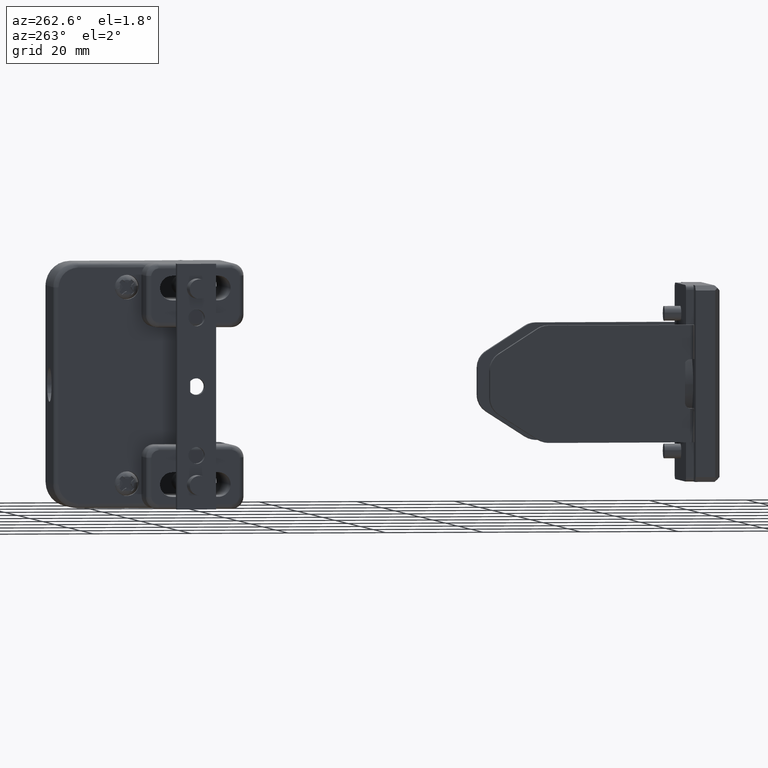
[diagram: clean part render]
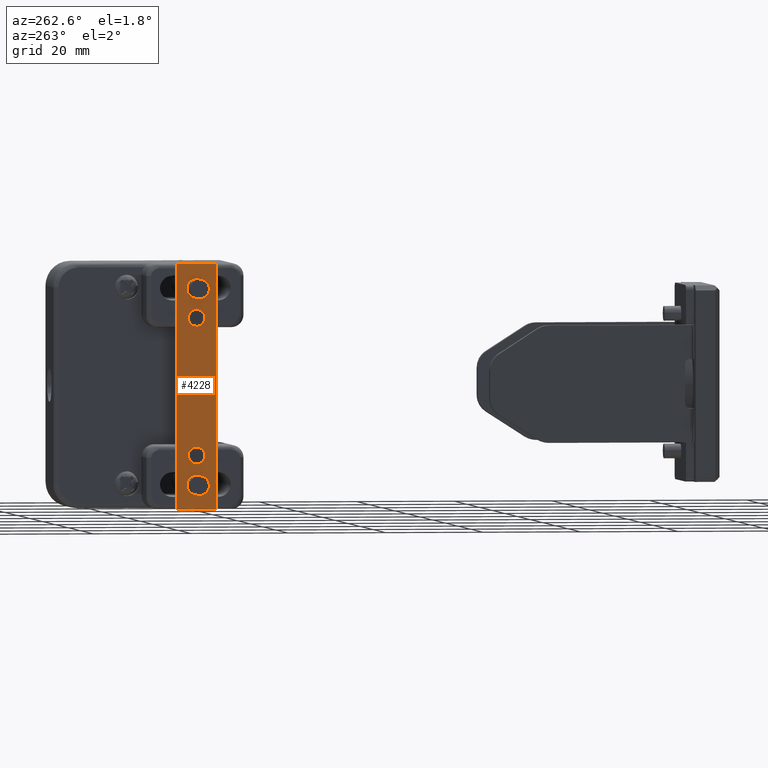
[diagram: same view with one face highlighted and labeled with its STEP entity id]
A machine part, auxiliary view. The second image highlights one B-rep face of the part: STEP entity #4228.
In plain terms, the highlighted face is a freeform B-spline surface patch.
Its self-contained STEP definition (entity closure, byte-faithful):
#3158=CARTESIAN_POINT('',(106.344875807416500,17.0,14.133380463721281));
#3159=VERTEX_POINT('',#3158);
#3165=CARTESIAN_POINT('',(108.039635274685390,17.0,15.699999999999999));
#3166=VERTEX_POINT('',#3165);
#3167=CARTESIAN_POINT('',(108.039635274685390,17.0,15.699999999999999));
#3168=CARTESIAN_POINT('',(106.468171440696810,17.000000000000011,15.699999999999994));
#3169=CARTESIAN_POINT('',(106.344875807416490,17.000000000000004,14.133380463721275));
#3177=(BOUNDED_CURVE()B_SPLINE_CURVE(2,(#3167,#3168,#3169),.UNSPECIFIED.,.F.,.U.)B_SPLINE_CURVE_WITH_KNOTS((3,3),(0.0,0.236331300433716),.UNSPECIFIED.)CURVE()GEOMETRIC_REPRESENTATION_ITEM()RATIONAL_B_SPLINE_CURVE((1.0,0.723120658838399,0.969723355756412))REPRESENTATION_ITEM(''));
#3178=EDGE_CURVE('',#3166,#3159,#3177,.T.);
#3180=CARTESIAN_POINT('',(109.734394741954300,17.0,13.866619536278719));
#3181=VERTEX_POINT('',#3180);
#3182=CARTESIAN_POINT('',(109.734394741954230,17.0,13.866619536278723));
#3183=CARTESIAN_POINT('',(109.739635274685340,16.999999999999996,13.933206817098450));
#3184=CARTESIAN_POINT('',(109.739635274685400,17.0,14.0));
#3185=CARTESIAN_POINT('',(109.739635274685380,17.000000000000004,15.700000000000006));
#3186=CARTESIAN_POINT('',(108.039635274685390,17.0,15.699999999999999));
#3194=(BOUNDED_CURVE()B_SPLINE_CURVE(2,(#3182,#3183,#3184,#3185,#3186),.UNSPECIFIED.,.F.,.U.)B_SPLINE_CURVE_WITH_KNOTS((3,2,3),(0.736331300433716,0.750000000000000,1.0),.UNSPECIFIED.)CURVE()GEOMETRIC_REPRESENTATION_ITEM()RATIONAL_B_SPLINE_CURVE((0.969723355756412,0.983986122348148,1.0,0.707106781186548,1.0))REPRESENTATION_ITEM(''));
#3195=EDGE_CURVE('',#3181,#3166,#3194,.T.);
#3271=CARTESIAN_POINT('',(108.039635274685390,17.0,12.300000000000001));
#3272=VERTEX_POINT('',#3271);
#3273=CARTESIAN_POINT('',(108.039635274685390,17.0,12.300000000000001));
#3274=CARTESIAN_POINT('',(109.611099108673970,16.999999999999996,12.300000000000002));
#3275=CARTESIAN_POINT('',(109.734394741954280,17.000000000000004,13.866619536278726));
#3283=(BOUNDED_CURVE()B_SPLINE_CURVE(2,(#3273,#3274,#3275),.UNSPECIFIED.,.F.,.U.)B_SPLINE_CURVE_WITH_KNOTS((3,3),(0.500000000000000,0.736331300433716),.UNSPECIFIED.)CURVE()GEOMETRIC_REPRESENTATION_ITEM()RATIONAL_B_SPLINE_CURVE((1.0,0.723120658838399,0.969723355756412))REPRESENTATION_ITEM(''));
#3284=EDGE_CURVE('',#3272,#3181,#3283,.T.);
#3286=CARTESIAN_POINT('',(106.344875807416500,16.999999999999996,14.133380463721277));
#3287=CARTESIAN_POINT('',(106.339635274685430,16.999999999999996,14.066793182901545));
#3288=CARTESIAN_POINT('',(106.339635274685410,17.0,14.0));
#3289=CARTESIAN_POINT('',(106.339635274685410,17.000000000000004,12.300000000000002));
#3290=CARTESIAN_POINT('',(108.039635274685390,17.0,12.300000000000001));
#3298=(BOUNDED_CURVE()B_SPLINE_CURVE(2,(#3286,#3287,#3288,#3289,#3290),.UNSPECIFIED.,.F.,.U.)B_SPLINE_CURVE_WITH_KNOTS((3,2,3),(0.236331300433716,0.250000000000000,0.500000000000000),.UNSPECIFIED.)CURVE()GEOMETRIC_REPRESENTATION_ITEM()RATIONAL_B_SPLINE_CURVE((0.969723355756412,0.983986122348148,1.0,0.707106781186548,1.0))REPRESENTATION_ITEM(''));
#3299=EDGE_CURVE('',#3159,#3272,#3298,.T.);
#3340=CARTESIAN_POINT('',(106.045800607277300,17.0,20.156918192195000));
#3341=VERTEX_POINT('',#3340);
#3347=CARTESIAN_POINT('',(108.039635274685390,17.0,22.0));
#3348=VERTEX_POINT('',#3347);
#3349=CARTESIAN_POINT('',(108.039635274685390,17.0,22.0));
#3350=CARTESIAN_POINT('',(106.190854292744260,17.0,22.000000000000004));
#3351=CARTESIAN_POINT('',(106.045800607277330,17.000000000000004,20.156918192195000));
#3359=(BOUNDED_CURVE()B_SPLINE_CURVE(2,(#3349,#3350,#3351),.UNSPECIFIED.,.F.,.U.)B_SPLINE_CURVE_WITH_KNOTS((3,3),(0.0,0.236331300505640),.UNSPECIFIED.)CURVE()GEOMETRIC_REPRESENTATION_ITEM()RATIONAL_B_SPLINE_CURVE((1.0,0.723120658754135,0.969723355906511))REPRESENTATION_ITEM(''));
#3360=EDGE_CURVE('',#3348,#3341,#3359,.T.);
#3362=CARTESIAN_POINT('',(110.033469942093500,17.0,19.843081807805000));
#3363=VERTEX_POINT('',#3362);
#3364=CARTESIAN_POINT('',(110.033469942093420,16.999999999999996,19.843081807805003));
#3365=CARTESIAN_POINT('',(110.039635274685350,17.000000000000004,19.921419785241927));
#3366=CARTESIAN_POINT('',(110.039635274685390,17.0,20.0));
#3367=CARTESIAN_POINT('',(110.039635274685420,17.000000000000004,22.000000000000007));
#3368=CARTESIAN_POINT('',(108.039635274685390,17.0,22.0));
#3376=(BOUNDED_CURVE()B_SPLINE_CURVE(2,(#3364,#3365,#3366,#3367,#3368),.UNSPECIFIED.,.F.,.U.)B_SPLINE_CURVE_WITH_KNOTS((3,2,3),(0.736331300505640,0.750000000000000,1.0),.UNSPECIFIED.)CURVE()GEOMETRIC_REPRESENTATION_ITEM()RATIONAL_B_SPLINE_CURVE((0.969723355906511,0.983986122432412,1.0,0.707106781186548,1.0))REPRESENTATION_ITEM(''));
#3377=EDGE_CURVE('',#3363,#3348,#3376,.T.);
#3453=CARTESIAN_POINT('',(108.039635274685390,17.0,18.0));
#3454=VERTEX_POINT('',#3453);
#3455=CARTESIAN_POINT('',(108.039635274685390,17.0,18.0));
#3456=CARTESIAN_POINT('',(109.888416256626530,17.0,18.000000000000004));
#3457=CARTESIAN_POINT('',(110.033469942093500,16.999999999999996,19.843081807805000));
#3465=(BOUNDED_CURVE()B_SPLINE_CURVE(2,(#3455,#3456,#3457),.UNSPECIFIED.,.F.,.U.)B_SPLINE_CURVE_WITH_KNOTS((3,3),(0.500000000000000,0.736331300505639),.UNSPECIFIED.)CURVE()GEOMETRIC_REPRESENTATION_ITEM()RATIONAL_B_SPLINE_CURVE((1.0,0.723120658754137,0.969723355906509))REPRESENTATION_ITEM(''));
#3466=EDGE_CURVE('',#3454,#3363,#3465,.T.);
#3468=CARTESIAN_POINT('',(106.045800607277360,16.999999999999996,20.156918192194997));
#3469=CARTESIAN_POINT('',(106.039635274685380,17.000000000000004,20.078580214758077));
#3470=CARTESIAN_POINT('',(106.039635274685390,17.0,20.0));
#3471=CARTESIAN_POINT('',(106.039635274685380,17.000000000000004,18.000000000000007));
#3472=CARTESIAN_POINT('',(108.039635274685390,17.0,18.0));
#3480=(BOUNDED_CURVE()B_SPLINE_CURVE(2,(#3468,#3469,#3470,#3471,#3472),.UNSPECIFIED.,.F.,.U.)B_SPLINE_CURVE_WITH_KNOTS((3,2,3),(0.236331300505640,0.250000000000000,0.500000000000000),.UNSPECIFIED.)CURVE()GEOMETRIC_REPRESENTATION_ITEM()RATIONAL_B_SPLINE_CURVE((0.969723355906511,0.983986122432412,1.0,0.707106781186548,1.0))REPRESENTATION_ITEM(''));
#3481=EDGE_CURVE('',#3341,#3454,#3480,.T.);
#3522=CARTESIAN_POINT('',(106.344875807416500,17.0,0.133380463721277));
#3523=VERTEX_POINT('',#3522);
#3529=CARTESIAN_POINT('',(108.039635274685390,17.0,1.700000000000000));
#3530=VERTEX_POINT('',#3529);
#3531=CARTESIAN_POINT('',(108.039635274685390,17.0,1.700000000000000));
#3532=CARTESIAN_POINT('',(106.468171440696820,17.000000000000011,1.700000000000001));
#3533=CARTESIAN_POINT('',(106.344875807416470,17.000000000000004,0.133380463721277));
#3541=(BOUNDED_CURVE()B_SPLINE_CURVE(2,(#3531,#3532,#3533),.UNSPECIFIED.,.F.,.U.)B_SPLINE_CURVE_WITH_KNOTS((3,3),(0.0,0.236331300433716),.UNSPECIFIED.)CURVE()GEOMETRIC_REPRESENTATION_ITEM()RATIONAL_B_SPLINE_CURVE((1.0,0.723120658838399,0.969723355756412))REPRESENTATION_ITEM(''));
#3542=EDGE_CURVE('',#3530,#3523,#3541,.T.);
#3544=CARTESIAN_POINT('',(109.734394741954300,17.0,-0.133380463721277));
#3545=VERTEX_POINT('',#3544);
#3546=CARTESIAN_POINT('',(109.734394741954290,17.000000000000004,-0.133380463721277));
#3547=CARTESIAN_POINT('',(109.739635274685410,16.999999999999993,-0.066793182901545));
#3548=CARTESIAN_POINT('',(109.739635274685400,17.0,0.0));
#3549=CARTESIAN_POINT('',(109.739635274685380,17.000000000000004,1.700000000000000));
#3550=CARTESIAN_POINT('',(108.039635274685390,17.0,1.700000000000000));
#3558=(BOUNDED_CURVE()B_SPLINE_CURVE(2,(#3546,#3547,#3548,#3549,#3550),.UNSPECIFIED.,.F.,.U.)B_SPLINE_CURVE_WITH_KNOTS((3,2,3),(0.736331300433716,0.750000000000000,1.0),.UNSPECIFIED.)CURVE()GEOMETRIC_REPRESENTATION_ITEM()RATIONAL_B_SPLINE_CURVE((0.969723355756412,0.983986122348149,1.0,0.707106781186548,1.0))REPRESENTATION_ITEM(''));
#3559=EDGE_CURVE('',#3545,#3530,#3558,.T.);
#3635=CARTESIAN_POINT('',(108.039635274685390,17.0,-1.700000000000000));
#3636=VERTEX_POINT('',#3635);
#3637=CARTESIAN_POINT('',(108.039635274685390,17.0,-1.700000000000000));
#3638=CARTESIAN_POINT('',(109.611099108673970,16.999999999999996,-1.700000000000000));
#3639=CARTESIAN_POINT('',(109.734394741954280,17.000000000000004,-0.133380463721277));
#3647=(BOUNDED_CURVE()B_SPLINE_CURVE(2,(#3637,#3638,#3639),.UNSPECIFIED.,.F.,.U.)B_SPLINE_CURVE_WITH_KNOTS((3,3),(0.500000000000000,0.736331300433716),.UNSPECIFIED.)CURVE()GEOMETRIC_REPRESENTATION_ITEM()RATIONAL_B_SPLINE_CURVE((1.0,0.723120658838399,0.969723355756412))REPRESENTATION_ITEM(''));
#3648=EDGE_CURVE('',#3636,#3545,#3647,.T.);
#3650=CARTESIAN_POINT('',(106.344875807416490,17.000000000000004,0.133380463721277));
#3651=CARTESIAN_POINT('',(106.339635274685420,16.999999999999993,0.066793182901545));
#3652=CARTESIAN_POINT('',(106.339635274685410,17.0,0.0));
#3653=CARTESIAN_POINT('',(106.339635274685410,17.000000000000004,-1.700000000000000));
#3654=CARTESIAN_POINT('',(108.039635274685390,17.0,-1.700000000000000));
#3662=(BOUNDED_CURVE()B_SPLINE_CURVE(2,(#3650,#3651,#3652,#3653,#3654),.UNSPECIFIED.,.F.,.U.)B_SPLINE_CURVE_WITH_KNOTS((3,2,3),(0.236331300433716,0.250000000000000,0.500000000000000),.UNSPECIFIED.)CURVE()GEOMETRIC_REPRESENTATION_ITEM()RATIONAL_B_SPLINE_CURVE((0.969723355756412,0.983986122348149,1.0,0.707106781186548,1.0))REPRESENTATION_ITEM(''));
#3663=EDGE_CURVE('',#3523,#3636,#3662,.T.);
#3704=CARTESIAN_POINT('',(106.344875807416500,17.0,-13.866619536278719));
#3705=VERTEX_POINT('',#3704);
#3711=CARTESIAN_POINT('',(108.039635274685390,17.0,-12.300000000000001));
#3712=VERTEX_POINT('',#3711);
#3713=CARTESIAN_POINT('',(108.039635274685390,17.0,-12.300000000000001));
#3714=CARTESIAN_POINT('',(106.468171440696810,17.000000000000007,-12.300000000000004));
#3715=CARTESIAN_POINT('',(106.344875807416500,16.999999999999996,-13.866619536278728));
#3723=(BOUNDED_CURVE()B_SPLINE_CURVE(2,(#3713,#3714,#3715),.UNSPECIFIED.,.F.,.U.)B_SPLINE_CURVE_WITH_KNOTS((3,3),(0.0,0.236331300433716),.UNSPECIFIED.)CURVE()GEOMETRIC_REPRESENTATION_ITEM()RATIONAL_B_SPLINE_CURVE((1.0,0.723120658838399,0.969723355756412))REPRESENTATION_ITEM(''));
#3724=EDGE_CURVE('',#3712,#3705,#3723,.T.);
#3726=CARTESIAN_POINT('',(109.734394741954300,17.0,-14.133380463721281));
#3727=VERTEX_POINT('',#3726);
#3728=CARTESIAN_POINT('',(109.734394741954320,16.999999999999996,-14.133380463721279));
#3729=CARTESIAN_POINT('',(109.739635274685330,16.999999999999996,-14.066793182901545));
#3730=CARTESIAN_POINT('',(109.739635274685400,17.0,-14.0));
#3731=CARTESIAN_POINT('',(109.739635274685380,17.000000000000004,-12.300000000000002));
#3732=CARTESIAN_POINT('',(108.039635274685390,17.0,-12.300000000000001));
#3740=(BOUNDED_CURVE()B_SPLINE_CURVE(2,(#3728,#3729,#3730,#3731,#3732),.UNSPECIFIED.,.F.,.U.)B_SPLINE_CURVE_WITH_KNOTS((3,2,3),(0.736331300433716,0.750000000000000,1.0),.UNSPECIFIED.)CURVE()GEOMETRIC_REPRESENTATION_ITEM()RATIONAL_B_SPLINE_CURVE((0.969723355756412,0.983986122348148,1.0,0.707106781186548,1.0))REPRESENTATION_ITEM(''));
#3741=EDGE_CURVE('',#3727,#3712,#3740,.T.);
#3817=CARTESIAN_POINT('',(108.039635274685390,17.0,-15.699999999999999));
#3818=VERTEX_POINT('',#3817);
#3819=CARTESIAN_POINT('',(108.039635274685390,17.0,-15.699999999999999));
#3820=CARTESIAN_POINT('',(109.611099108673970,16.999999999999996,-15.699999999999996));
#3821=CARTESIAN_POINT('',(109.734394741954280,17.000000000000004,-14.133380463721274));
#3829=(BOUNDED_CURVE()B_SPLINE_CURVE(2,(#3819,#3820,#3821),.UNSPECIFIED.,.F.,.U.)B_SPLINE_CURVE_WITH_KNOTS((3,3),(0.500000000000000,0.736331300433716),.UNSPECIFIED.)CURVE()GEOMETRIC_REPRESENTATION_ITEM()RATIONAL_B_SPLINE_CURVE((1.0,0.723120658838399,0.969723355756412))REPRESENTATION_ITEM(''));
#3830=EDGE_CURVE('',#3818,#3727,#3829,.T.);
#3832=CARTESIAN_POINT('',(106.344875807416530,17.0,-13.866619536278721));
#3833=CARTESIAN_POINT('',(106.339635274685450,16.999999999999996,-13.933206817098450));
#3834=CARTESIAN_POINT('',(106.339635274685410,17.0,-14.0));
#3835=CARTESIAN_POINT('',(106.339635274685410,17.000000000000004,-15.700000000000006));
#3836=CARTESIAN_POINT('',(108.039635274685390,17.0,-15.699999999999999));
#3844=(BOUNDED_CURVE()B_SPLINE_CURVE(2,(#3832,#3833,#3834,#3835,#3836),.UNSPECIFIED.,.F.,.U.)B_SPLINE_CURVE_WITH_KNOTS((3,2,3),(0.236331300433716,0.250000000000000,0.500000000000000),.UNSPECIFIED.)CURVE()GEOMETRIC_REPRESENTATION_ITEM()RATIONAL_B_SPLINE_CURVE((0.969723355756412,0.983986122348148,1.0,0.707106781186548,1.0))REPRESENTATION_ITEM(''));
#3845=EDGE_CURVE('',#3705,#3818,#3844,.T.);
#3886=CARTESIAN_POINT('',(106.045800607277300,17.0,-19.843078807805000));
#3887=VERTEX_POINT('',#3886);
#3893=CARTESIAN_POINT('',(108.039635274685390,17.0,-17.999997000000000));
#3894=VERTEX_POINT('',#3893);
#3895=CARTESIAN_POINT('',(108.039635274685390,17.0,-17.999997000000000));
#3896=CARTESIAN_POINT('',(106.190854292744250,17.000000000000004,-17.999997000000000));
#3897=CARTESIAN_POINT('',(106.045800607277300,16.999999999999996,-19.843078807804996));
#3905=(BOUNDED_CURVE()B_SPLINE_CURVE(2,(#3895,#3896,#3897),.UNSPECIFIED.,.F.,.U.)B_SPLINE_CURVE_WITH_KNOTS((3,3),(0.0,0.236331300505640),.UNSPECIFIED.)CURVE()GEOMETRIC_REPRESENTATION_ITEM()RATIONAL_B_SPLINE_CURVE((1.0,0.723120658754135,0.969723355906511))REPRESENTATION_ITEM(''));
#3906=EDGE_CURVE('',#3894,#3887,#3905,.T.);
#3908=CARTESIAN_POINT('',(110.033469942093500,17.0,-20.156915192194990));
#3909=VERTEX_POINT('',#3908);
#3910=CARTESIAN_POINT('',(110.033469942093420,16.999999999999996,-20.156915192194994));
#3911=CARTESIAN_POINT('',(110.039635274685350,17.000000000000004,-20.078577214758077));
#3912=CARTESIAN_POINT('',(110.039635274685390,17.0,-19.999997000000000));
#3913=CARTESIAN_POINT('',(110.039635274685420,17.000000000000004,-17.999996999999993));
#3914=CARTESIAN_POINT('',(108.039635274685390,17.0,-17.999997000000000));
#3922=(BOUNDED_CURVE()B_SPLINE_CURVE(2,(#3910,#3911,#3912,#3913,#3914),.UNSPECIFIED.,.F.,.U.)B_SPLINE_CURVE_WITH_KNOTS((3,2,3),(0.736331300505640,0.750000000000000,1.0),.UNSPECIFIED.)CURVE()GEOMETRIC_REPRESENTATION_ITEM()RATIONAL_B_SPLINE_CURVE((0.969723355906511,0.983986122432412,1.0,0.707106781186548,1.0))REPRESENTATION_ITEM(''));
#3923=EDGE_CURVE('',#3909,#3894,#3922,.T.);
#3999=CARTESIAN_POINT('',(108.039635274685390,17.0,-21.999997000000000));
#4000=VERTEX_POINT('',#3999);
#4001=CARTESIAN_POINT('',(108.039635274685390,17.0,-21.999997000000000));
#4002=CARTESIAN_POINT('',(109.888416256626530,17.0,-21.999997000000000));
#4003=CARTESIAN_POINT('',(110.033469942093500,16.999999999999996,-20.156915192195001));
#4011=(BOUNDED_CURVE()B_SPLINE_CURVE(2,(#4001,#4002,#4003),.UNSPECIFIED.,.F.,.U.)B_SPLINE_CURVE_WITH_KNOTS((3,3),(0.500000000000000,0.736331300505639),.UNSPECIFIED.)CURVE()GEOMETRIC_REPRESENTATION_ITEM()RATIONAL_B_SPLINE_CURVE((1.0,0.723120658754137,0.969723355906509))REPRESENTATION_ITEM(''));
#4012=EDGE_CURVE('',#4000,#3909,#4011,.T.);
#4014=CARTESIAN_POINT('',(106.045800607277290,16.999999999999993,-19.843078807804996));
#4015=CARTESIAN_POINT('',(106.039635274685350,16.999999999999996,-19.921416785241917));
#4016=CARTESIAN_POINT('',(106.039635274685390,17.0,-19.999997000000000));
#4017=CARTESIAN_POINT('',(106.039635274685380,17.000000000000004,-21.999996999999997));
#4018=CARTESIAN_POINT('',(108.039635274685390,17.0,-21.999997000000000));
#4026=(BOUNDED_CURVE()B_SPLINE_CURVE(2,(#4014,#4015,#4016,#4017,#4018),.UNSPECIFIED.,.F.,.U.)B_SPLINE_CURVE_WITH_KNOTS((3,2,3),(0.236331300505640,0.250000000000000,0.500000000000000),.UNSPECIFIED.)CURVE()GEOMETRIC_REPRESENTATION_ITEM()RATIONAL_B_SPLINE_CURVE((0.969723355906511,0.983986122432412,1.0,0.707106781186548,1.0))REPRESENTATION_ITEM(''));
#4027=EDGE_CURVE('',#3887,#4000,#4026,.T.);
#4047=CARTESIAN_POINT('',(104.039635274685390,17.0,25.0));
#4048=VERTEX_POINT('',#4047);
#4054=CARTESIAN_POINT('',(104.039635274685390,17.0,-24.999997000000000));
#4055=VERTEX_POINT('',#4054);
#4056=CARTESIAN_POINT('',(104.039635274685390,17.0,-24.999997000000000));
#4057=CARTESIAN_POINT('',(104.039635274685390,17.0,25.0));
#4058=QUASI_UNIFORM_CURVE('',1,(#4056,#4057),.UNSPECIFIED.,.F.,.U.);
#4059=EDGE_CURVE('',#4055,#4048,#4058,.T.);
#4082=CARTESIAN_POINT('',(112.039635274685390,17.0,-24.999997000000000));
#4083=VERTEX_POINT('',#4082);
#4084=CARTESIAN_POINT('',(112.039635274685390,17.0,-24.999997000000000));
#4085=CARTESIAN_POINT('',(104.039635274685390,17.0,-24.999997000000000));
#4086=QUASI_UNIFORM_CURVE('',1,(#4084,#4085),.UNSPECIFIED.,.F.,.U.);
#4087=EDGE_CURVE('',#4083,#4055,#4086,.T.);
#4110=CARTESIAN_POINT('',(112.039635274685390,17.0,25.0));
#4111=VERTEX_POINT('',#4110);
#4112=CARTESIAN_POINT('',(112.039635274685390,17.0,25.0));
#4113=CARTESIAN_POINT('',(112.039635274685390,17.0,-24.999997000000000));
#4114=QUASI_UNIFORM_CURVE('',1,(#4112,#4113),.UNSPECIFIED.,.F.,.U.);
#4115=EDGE_CURVE('',#4111,#4083,#4114,.T.);
#4136=CARTESIAN_POINT('',(104.039635274685390,17.0,25.0));
#4137=CARTESIAN_POINT('',(112.039635274685390,17.0,25.0));
#4138=QUASI_UNIFORM_CURVE('',1,(#4136,#4137),.UNSPECIFIED.,.F.,.U.);
#4139=EDGE_CURVE('',#4048,#4111,#4138,.T.);
#4187=CARTESIAN_POINT('',(103.640034717986300,17.0,27.497499574605190));
#4188=CARTESIAN_POINT('',(112.439234901552000,17.0,27.497499574605190));
#4189=CARTESIAN_POINT('',(103.640034717986300,17.0,-27.497494339431150));
#4190=CARTESIAN_POINT('',(112.439234901552000,17.0,-27.497494339431150));
#4191=B_SPLINE_SURFACE_WITH_KNOTS('',1,1,((#4187,#4189),(#4188,#4190)),.UNSPECIFIED.,.F.,.F.,.U.,(2,2),(2,2),(0.0,8.799200183565645),(0.0,54.994993914036343),.UNSPECIFIED.);
#4192=ORIENTED_EDGE('',*,*,#4139,.T.);
#4193=ORIENTED_EDGE('',*,*,#4115,.T.);
#4194=ORIENTED_EDGE('',*,*,#4087,.T.);
#4195=ORIENTED_EDGE('',*,*,#4059,.T.);
#4196=EDGE_LOOP('',(#4192,#4193,#4194,#4195));
#4197=FACE_OUTER_BOUND('',#4196,.T.);
#4198=ORIENTED_EDGE('',*,*,#4012,.T.);
#4199=ORIENTED_EDGE('',*,*,#3923,.T.);
#4200=ORIENTED_EDGE('',*,*,#3906,.T.);
#4201=ORIENTED_EDGE('',*,*,#4027,.T.);
#4202=EDGE_LOOP('',(#4198,#4199,#4200,#4201));
#4203=FACE_BOUND('',#4202,.T.);
#4204=ORIENTED_EDGE('',*,*,#3830,.T.);
#4205=ORIENTED_EDGE('',*,*,#3741,.T.);
#4206=ORIENTED_EDGE('',*,*,#3724,.T.);
#4207=ORIENTED_EDGE('',*,*,#3845,.T.);
#4208=EDGE_LOOP('',(#4204,#4205,#4206,#4207));
#4209=FACE_BOUND('',#4208,.T.);
#4210=ORIENTED_EDGE('',*,*,#3648,.T.);
#4211=ORIENTED_EDGE('',*,*,#3559,.T.);
#4212=ORIENTED_EDGE('',*,*,#3542,.T.);
#4213=ORIENTED_EDGE('',*,*,#3663,.T.);
#4214=EDGE_LOOP('',(#4210,#4211,#4212,#4213));
#4215=FACE_BOUND('',#4214,.T.);
#4216=ORIENTED_EDGE('',*,*,#3466,.T.);
#4217=ORIENTED_EDGE('',*,*,#3377,.T.);
#4218=ORIENTED_EDGE('',*,*,#3360,.T.);
#4219=ORIENTED_EDGE('',*,*,#3481,.T.);
#4220=EDGE_LOOP('',(#4216,#4217,#4218,#4219));
#4221=FACE_BOUND('',#4220,.T.);
#4222=ORIENTED_EDGE('',*,*,#3284,.T.);
#4223=ORIENTED_EDGE('',*,*,#3195,.T.);
#4224=ORIENTED_EDGE('',*,*,#3178,.T.);
#4225=ORIENTED_EDGE('',*,*,#3299,.T.);
#4226=EDGE_LOOP('',(#4222,#4223,#4224,#4225));
#4227=FACE_BOUND('',#4226,.T.);
#4228=ADVANCED_FACE('',(#4197,#4203,#4209,#4215,#4221,#4227),#4191,.T.);